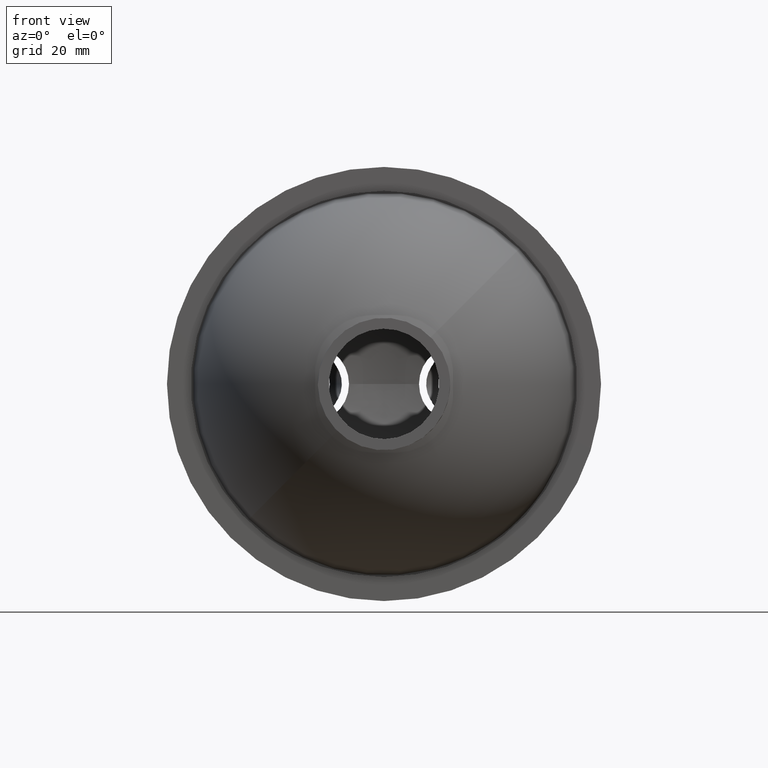
[diagram: clean part render]
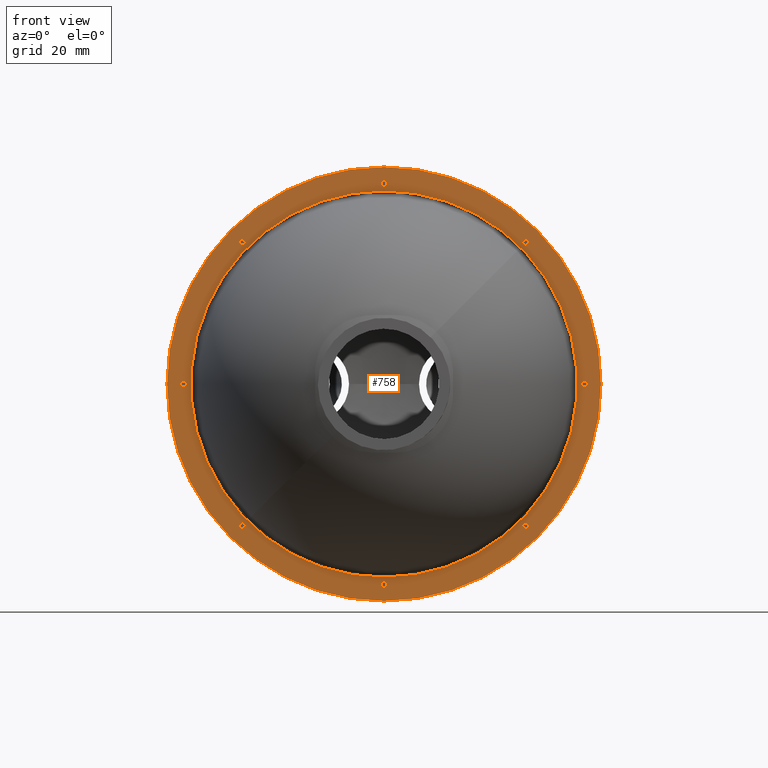
[diagram: same view with one face highlighted and labeled with its STEP entity id]
A machine part, front view. The second image highlights one B-rep face of the part: STEP entity #758.
In plain terms, the highlighted planar face has unit normal (0, 1, 0).
Its self-contained STEP definition (entity closure, byte-faithful):
#7 = EDGE_LOOP ( 'NONE', ( #652, #5634 ) ) ;
#16 = DIRECTION ( 'NONE',  ( 0.000000000000000000, 1.000000000000000000, 0.000000000000000000 ) ) ;
#18 = AXIS2_PLACEMENT_3D ( 'NONE', #3083, #4628, #874 ) ;
#21 = VERTEX_POINT ( 'NONE', #841 ) ;
#47 = AXIS2_PLACEMENT_3D ( 'NONE', #4084, #4049, #6102 ) ;
#70 = CIRCLE ( 'NONE', #726, 0.7999999999999951594 ) ;
#81 = DIRECTION ( 'NONE',  ( 0.000000000000000000, 0.000000000000000000, 1.000000000000000000 ) ) ;
#85 = DIRECTION ( 'NONE',  ( 0.000000000000000000, 1.000000000000000000, 0.000000000000000000 ) ) ;
#154 = CIRCLE ( 'NONE', #2987, 59.00000000000000711 ) ;
#161 = DIRECTION ( 'NONE',  ( 0.000000000000000000, 0.000000000000000000, 1.000000000000000000 ) ) ;
#196 = DIRECTION ( 'NONE',  ( 0.000000000000000000, 1.000000000000000000, 0.000000000000000000 ) ) ;
#213 = CARTESIAN_POINT ( 'NONE',  ( -46.01598105039164466, -23.91086588718419748, -8.212931467189969134E-13 ) ) ;
#315 = EDGE_CURVE ( 'NONE', #4604, #4274, #4470, .T. ) ;
#316 = FACE_BOUND ( 'NONE', #4859, .T. ) ;
#319 = DIRECTION ( 'NONE',  ( 0.000000000000000000, 0.000000000000000000, 1.000000000000000000 ) ) ;
#386 = FACE_BOUND ( 'NONE', #5607, .T. ) ;
#405 = CARTESIAN_POINT ( 'NONE',  ( -30.05330062505867872, -23.91086588718419748, 39.33731957466618212 ) ) ;
#415 = ORIENTED_EDGE ( 'NONE', *, *, #803, .F. ) ;
#425 = CARTESIAN_POINT ( 'NONE',  ( 47.02133852427566296, -23.91086588718419748, -38.53731957466681735 ) ) ;
#511 = CARTESIAN_POINT ( 'NONE',  ( -30.05330062505867872, -23.91086588718419748, 37.73731957466619491 ) ) ;
#560 = EDGE_CURVE ( 'NONE', #6215, #4766, #4585, .T. ) ;
#566 = DIRECTION ( 'NONE',  ( 0.000000000000000000, 0.000000000000000000, 1.000000000000000000 ) ) ;
#633 = DIRECTION ( 'NONE',  ( 0.000000000000000000, 0.000000000000000000, 1.000000000000000000 ) ) ;
#652 = ORIENTED_EDGE ( 'NONE', *, *, #2707, .T. ) ;
#726 = AXIS2_PLACEMENT_3D ( 'NONE', #3426, #4018, #4452 ) ;
#758 = ADVANCED_FACE ( 'NONE', ( #2903, #2933, #1944, #6425, #3001, #4952, #386, #316, #2384, #4518 ), #3474, .F. ) ;
#803 = EDGE_CURVE ( 'NONE', #2705, #4021, #154, .T. ) ;
#841 = CARTESIAN_POINT ( 'NONE',  ( 8.484018949608934435, -23.91086588718419748, -53.70000000000044338 ) ) ;
#874 = DIRECTION ( 'NONE',  ( 0.000000000000000000, 0.000000000000000000, 1.000000000000000000 ) ) ;
#901 = CIRCLE ( 'NONE', #3503, 0.8000000000000020428 ) ;
#957 = VERTEX_POINT ( 'NONE', #6470 ) ;
#1045 = EDGE_CURVE ( 'NONE', #6613, #2304, #2115, .T. ) ;
#1054 = ORIENTED_EDGE ( 'NONE', *, *, #3998, .T. ) ;
#1173 = CARTESIAN_POINT ( 'NONE',  ( -30.05330062505813871, -23.91086588718419748, -38.53731957466762026 ) ) ;
#1199 = ORIENTED_EDGE ( 'NONE', *, *, #6497, .T. ) ;
#1202 = EDGE_CURVE ( 'NONE', #957, #1292, #1472, .T. ) ;
#1209 = CIRCLE ( 'NONE', #2079, 0.8000000000000020428 ) ;
#1224 = ORIENTED_EDGE ( 'NONE', *, *, #560, .T. ) ;
#1291 = CARTESIAN_POINT ( 'NONE',  ( 8.484018949608364224, -23.91086588718419748, -4.407216807850953903E-13 ) ) ;
#1292 = VERTEX_POINT ( 'NONE', #5717 ) ;
#1317 = AXIS2_PLACEMENT_3D ( 'NONE', #1173, #85, #2629 ) ;
#1404 = DIRECTION ( 'NONE',  ( 0.000000000000000000, 1.000000000000000000, 0.000000000000000000 ) ) ;
#1425 = ORIENTED_EDGE ( 'NONE', *, *, #2752, .T. ) ;
#1472 = CIRCLE ( 'NONE', #4595, 0.7999999999999986011 ) ;
#1533 = EDGE_LOOP ( 'NONE', ( #1199, #4704 ) ) ;
#1584 = CIRCLE ( 'NONE', #3322, 0.7999999999999951594 ) ;
#1674 = DIRECTION ( 'NONE',  ( 0.000000000000000000, 0.000000000000000000, 1.000000000000000000 ) ) ;
#1705 = ORIENTED_EDGE ( 'NONE', *, *, #6542, .F. ) ;
#1824 = CARTESIAN_POINT ( 'NONE',  ( -30.05330062505867872, -23.91086588718419748, 38.53731957466619207 ) ) ;
#1831 = VERTEX_POINT ( 'NONE', #3446 ) ;
#1844 = EDGE_CURVE ( 'NONE', #5735, #21, #901, .T. ) ;
#1871 = DIRECTION ( 'NONE',  ( 0.000000000000000000, -0.000000000000000000, 1.000000000000000000 ) ) ;
#1892 = CARTESIAN_POINT ( 'NONE',  ( 8.484018949608364224, -23.91086588718419748, -4.407216807850953903E-13 ) ) ;
#1902 = CIRCLE ( 'NONE', #47, 0.7999999999999951594 ) ;
#1906 = EDGE_LOOP ( 'NONE', ( #1915, #5937 ) ) ;
#1915 = ORIENTED_EDGE ( 'NONE', *, *, #5738, .T. ) ;
#1944 = FACE_BOUND ( 'NONE', #3809, .T. ) ;
#1948 = CARTESIAN_POINT ( 'NONE',  ( 47.02133852427513006, -23.91086588718419748, 39.33731957466646634 ) ) ;
#1951 = CARTESIAN_POINT ( 'NONE',  ( 8.484018949608364224, -23.91086588718419748, -4.407216807850953903E-13 ) ) ;
#2079 = AXIS2_PLACEMENT_3D ( 'NONE', #4656, #16, #633 ) ;
#2103 = AXIS2_PLACEMENT_3D ( 'NONE', #5258, #2669, #4724 ) ;
#2115 = CIRCLE ( 'NONE', #6631, 0.7999999999999986011 ) ;
#2181 = DIRECTION ( 'NONE',  ( 0.000000000000000000, 1.000000000000000000, 0.000000000000000000 ) ) ;
#2214 = ORIENTED_EDGE ( 'NONE', *, *, #1045, .T. ) ;
#2239 = CARTESIAN_POINT ( 'NONE',  ( 47.02133852427566296, -23.91086588718419748, -39.33731957466680740 ) ) ;
#2304 = VERTEX_POINT ( 'NONE', #4069 ) ;
#2305 = CIRCLE ( 'NONE', #4884, 52.50000000000000000 ) ;
#2310 = CARTESIAN_POINT ( 'NONE',  ( 8.484018949608364224, -23.91086588718419748, -52.50000000000044054 ) ) ;
#2338 = AXIS2_PLACEMENT_3D ( 'NONE', #3267, #3239, #1674 ) ;
#2358 = DIRECTION ( 'NONE',  ( 0.000000000000000000, 1.000000000000000000, 0.000000000000000000 ) ) ;
#2374 = CARTESIAN_POINT ( 'NONE',  ( -30.05330062505813871, -23.91086588718419748, -39.33731957466761742 ) ) ;
#2384 = FACE_OUTER_BOUND ( 'NONE', #3571, .T. ) ;
#2467 = VERTEX_POINT ( 'NONE', #405 ) ;
#2480 = VERTEX_POINT ( 'NONE', #5572 ) ;
#2518 = CARTESIAN_POINT ( 'NONE',  ( 8.484018949608172377, -23.91086588718419748, 54.49999999999955236 ) ) ;
#2569 = CARTESIAN_POINT ( 'NONE',  ( -46.01598105039164466, -23.91086588718419748, -8.212931467189969134E-13 ) ) ;
#2596 = DIRECTION ( 'NONE',  ( 0.000000000000000000, 0.000000000000000000, 1.000000000000000000 ) ) ;
#2602 = ORIENTED_EDGE ( 'NONE', *, *, #3010, .T. ) ;
#2629 = DIRECTION ( 'NONE',  ( 0.000000000000000000, 0.000000000000000000, 1.000000000000000000 ) ) ;
#2633 = CARTESIAN_POINT ( 'NONE',  ( 8.484018949608364224, -23.91086588718419748, -4.407216807850953903E-13 ) ) ;
#2658 = CIRCLE ( 'NONE', #6420, 0.8000000000000020428 ) ;
#2669 = DIRECTION ( 'NONE',  ( 0.000000000000000000, 1.000000000000000000, 0.000000000000000000 ) ) ;
#2693 = CARTESIAN_POINT ( 'NONE',  ( 8.484018949608364224, -23.91086588718419748, -59.00000000000044764 ) ) ;
#2705 = VERTEX_POINT ( 'NONE', #2693 ) ;
#2707 = EDGE_CURVE ( 'NONE', #1292, #957, #4058, .T. ) ;
#2734 = DIRECTION ( 'NONE',  ( 0.000000000000000000, 1.000000000000000000, 0.000000000000000000 ) ) ;
#2752 = EDGE_CURVE ( 'NONE', #2480, #4924, #6642, .T. ) ;
#2903 = FACE_BOUND ( 'NONE', #6482, .T. ) ;
#2905 = VERTEX_POINT ( 'NONE', #1948 ) ;
#2933 = FACE_BOUND ( 'NONE', #1533, .T. ) ;
#2987 = AXIS2_PLACEMENT_3D ( 'NONE', #2633, #4756, #566 ) ;
#3001 = FACE_BOUND ( 'NONE', #1906, .T. ) ;
#3010 = EDGE_CURVE ( 'NONE', #4766, #6215, #3204, .T. ) ;
#3020 = EDGE_CURVE ( 'NONE', #5653, #4102, #2658, .T. ) ;
#3036 = DIRECTION ( 'NONE',  ( 0.000000000000000000, 1.000000000000000000, 0.000000000000000000 ) ) ;
#3064 = DIRECTION ( 'NONE',  ( 0.000000000000000000, 0.000000000000000000, 1.000000000000000000 ) ) ;
#3083 = CARTESIAN_POINT ( 'NONE',  ( 62.98401894960835534, -23.91086588718419748, -4.407216807850953903E-13 ) ) ;
#3110 = ORIENTED_EDGE ( 'NONE', *, *, #4043, .T. ) ;
#3204 = CIRCLE ( 'NONE', #4703, 0.7999999999999951594 ) ;
#3239 = DIRECTION ( 'NONE',  ( 0.000000000000000000, 1.000000000000000000, 0.000000000000000000 ) ) ;
#3267 = CARTESIAN_POINT ( 'NONE',  ( -30.05330062505813871, -23.91086588718419748, -38.53731957466762026 ) ) ;
#3274 = CARTESIAN_POINT ( 'NONE',  ( 8.484018949608172377, -23.91086588718419748, 55.29999999999955662 ) ) ;
#3285 = ORIENTED_EDGE ( 'NONE', *, *, #5627, .T. ) ;
#3322 = AXIS2_PLACEMENT_3D ( 'NONE', #1824, #3879, #4827 ) ;
#3336 = CARTESIAN_POINT ( 'NONE',  ( 47.02133852427566296, -23.91086588718419748, -38.53731957466681735 ) ) ;
#3384 = CIRCLE ( 'NONE', #1317, 0.7999999999999951594 ) ;
#3426 = CARTESIAN_POINT ( 'NONE',  ( -30.05330062505867872, -23.91086588718419748, 38.53731957466619207 ) ) ;
#3446 = CARTESIAN_POINT ( 'NONE',  ( 47.02133852427513006, -23.91086588718419748, 37.73731957466647202 ) ) ;
#3474 = PLANE ( 'NONE',  #6191 ) ;
#3483 = EDGE_LOOP ( 'NONE', ( #4331, #3697 ) ) ;
#3503 = AXIS2_PLACEMENT_3D ( 'NONE', #4873, #2358, #319 ) ;
#3567 = DIRECTION ( 'NONE',  ( 0.000000000000000000, 1.000000000000000000, 0.000000000000000000 ) ) ;
#3571 = EDGE_LOOP ( 'NONE', ( #415, #1705 ) ) ;
#3612 = CARTESIAN_POINT ( 'NONE',  ( 8.484018949608371329, -23.91086588718419748, 58.99999999999955946 ) ) ;
#3615 = CIRCLE ( 'NONE', #5865, 59.00000000000000711 ) ;
#3697 = ORIENTED_EDGE ( 'NONE', *, *, #4262, .T. ) ;
#3702 = CARTESIAN_POINT ( 'NONE',  ( 8.484018949608364224, -23.91086588718419748, -4.407216807850953903E-13 ) ) ;
#3809 = EDGE_LOOP ( 'NONE', ( #1425, #1054 ) ) ;
#3879 = DIRECTION ( 'NONE',  ( 0.000000000000000000, 1.000000000000000000, 0.000000000000000000 ) ) ;
#3912 = CIRCLE ( 'NONE', #18, 0.7999999999999986011 ) ;
#3953 = DIRECTION ( 'NONE',  ( 0.000000000000000000, 0.000000000000000000, 1.000000000000000000 ) ) ;
#3982 = EDGE_CURVE ( 'NONE', #2304, #6613, #3912, .T. ) ;
#3998 = EDGE_CURVE ( 'NONE', #4924, #2480, #3384, .T. ) ;
#4018 = DIRECTION ( 'NONE',  ( 0.000000000000000000, 1.000000000000000000, 0.000000000000000000 ) ) ;
#4021 = VERTEX_POINT ( 'NONE', #3612 ) ;
#4042 = DIRECTION ( 'NONE',  ( 0.000000000000000000, 0.000000000000000000, 1.000000000000000000 ) ) ;
#4043 = EDGE_CURVE ( 'NONE', #4102, #5653, #1209, .T. ) ;
#4049 = DIRECTION ( 'NONE',  ( 0.000000000000000000, 1.000000000000000000, 0.000000000000000000 ) ) ;
#4058 = CIRCLE ( 'NONE', #4917, 0.7999999999999986011 ) ;
#4069 = CARTESIAN_POINT ( 'NONE',  ( 62.98401894960835534, -23.91086588718419748, 0.7999999999995579536 ) ) ;
#4084 = CARTESIAN_POINT ( 'NONE',  ( 47.02133852427513006, -23.91086588718419748, 38.53731957466646918 ) ) ;
#4102 = VERTEX_POINT ( 'NONE', #3274 ) ;
#4130 = DIRECTION ( 'NONE',  ( 0.000000000000000000, 1.000000000000000000, 0.000000000000000000 ) ) ;
#4262 = EDGE_CURVE ( 'NONE', #4274, #4604, #2305, .T. ) ;
#4274 = VERTEX_POINT ( 'NONE', #6004 ) ;
#4287 = DIRECTION ( 'NONE',  ( 0.000000000000000000, 1.000000000000000000, 0.000000000000000000 ) ) ;
#4318 = DIRECTION ( 'NONE',  ( 0.000000000000000000, 0.000000000000000000, 1.000000000000000000 ) ) ;
#4331 = ORIENTED_EDGE ( 'NONE', *, *, #315, .T. ) ;
#4443 = DIRECTION ( 'NONE',  ( 0.000000000000000000, 1.000000000000000000, 0.000000000000000000 ) ) ;
#4452 = DIRECTION ( 'NONE',  ( 0.000000000000000000, 0.000000000000000000, 1.000000000000000000 ) ) ;
#4470 = CIRCLE ( 'NONE', #5313, 52.50000000000000000 ) ;
#4518 = FACE_BOUND ( 'NONE', #3483, .T. ) ;
#4585 = CIRCLE ( 'NONE', #5864, 0.7999999999999951594 ) ;
#4595 = AXIS2_PLACEMENT_3D ( 'NONE', #2569, #2181, #2596 ) ;
#4604 = VERTEX_POINT ( 'NONE', #2310 ) ;
#4628 = DIRECTION ( 'NONE',  ( 0.000000000000000000, 1.000000000000000000, 0.000000000000000000 ) ) ;
#4656 = CARTESIAN_POINT ( 'NONE',  ( 8.484018949608172377, -23.91086588718419748, 54.49999999999955236 ) ) ;
#4703 = AXIS2_PLACEMENT_3D ( 'NONE', #425, #3567, #4042 ) ;
#4704 = ORIENTED_EDGE ( 'NONE', *, *, #1844, .T. ) ;
#4724 = DIRECTION ( 'NONE',  ( 0.000000000000000000, 0.000000000000000000, 1.000000000000000000 ) ) ;
#4756 = DIRECTION ( 'NONE',  ( 0.000000000000000000, 1.000000000000000000, 0.000000000000000000 ) ) ;
#4766 = VERTEX_POINT ( 'NONE', #2239 ) ;
#4827 = DIRECTION ( 'NONE',  ( 0.000000000000000000, 0.000000000000000000, 1.000000000000000000 ) ) ;
#4858 = CARTESIAN_POINT ( 'NONE',  ( 62.98401894960835534, -23.91086588718419748, -4.407216807850953903E-13 ) ) ;
#4859 = EDGE_LOOP ( 'NONE', ( #5059, #2214 ) ) ;
#4873 = CARTESIAN_POINT ( 'NONE',  ( 8.484018949608934435, -23.91086588718419748, -54.50000000000044054 ) ) ;
#4884 = AXIS2_PLACEMENT_3D ( 'NONE', #1892, #4130, #3953 ) ;
#4917 = AXIS2_PLACEMENT_3D ( 'NONE', #213, #6354, #81 ) ;
#4924 = VERTEX_POINT ( 'NONE', #2374 ) ;
#4952 = FACE_BOUND ( 'NONE', #6282, .T. ) ;
#5059 = ORIENTED_EDGE ( 'NONE', *, *, #3982, .T. ) ;
#5250 = CIRCLE ( 'NONE', #6433, 0.7999999999999951594 ) ;
#5258 = CARTESIAN_POINT ( 'NONE',  ( 8.484018949608934435, -23.91086588718419748, -54.50000000000044054 ) ) ;
#5313 = AXIS2_PLACEMENT_3D ( 'NONE', #1951, #4443, #6495 ) ;
#5323 = ORIENTED_EDGE ( 'NONE', *, *, #5412, .T. ) ;
#5328 = CIRCLE ( 'NONE', #2103, 0.8000000000000020428 ) ;
#5340 = CARTESIAN_POINT ( 'NONE',  ( 47.02133852427566296, -23.91086588718419748, -37.73731957466682019 ) ) ;
#5360 = CARTESIAN_POINT ( 'NONE',  ( 47.02133852427513006, -23.91086588718419748, 38.53731957466646918 ) ) ;
#5412 = EDGE_CURVE ( 'NONE', #1831, #2905, #1902, .T. ) ;
#5439 = VERTEX_POINT ( 'NONE', #511 ) ;
#5500 = CARTESIAN_POINT ( 'NONE',  ( 8.484018949608934435, -23.91086588718419748, -55.30000000000044480 ) ) ;
#5572 = CARTESIAN_POINT ( 'NONE',  ( -30.05330062505813871, -23.91086588718419748, -37.73731957466762310 ) ) ;
#5607 = EDGE_LOOP ( 'NONE', ( #3285, #5323 ) ) ;
#5615 = EDGE_CURVE ( 'NONE', #5439, #2467, #1584, .T. ) ;
#5627 = EDGE_CURVE ( 'NONE', #2905, #1831, #5250, .T. ) ;
#5634 = ORIENTED_EDGE ( 'NONE', *, *, #1202, .T. ) ;
#5653 = VERTEX_POINT ( 'NONE', #6440 ) ;
#5717 = CARTESIAN_POINT ( 'NONE',  ( -46.01598105039164466, -23.91086588718419748, 0.7999999999991773691 ) ) ;
#5735 = VERTEX_POINT ( 'NONE', #5500 ) ;
#5738 = EDGE_CURVE ( 'NONE', #2467, #5439, #70, .T. ) ;
#5744 = DIRECTION ( 'NONE',  ( 0.000000000000000000, 1.000000000000000000, 0.000000000000000000 ) ) ;
#5760 = DIRECTION ( 'NONE',  ( 0.000000000000000000, 0.000000000000000000, 1.000000000000000000 ) ) ;
#5844 = DIRECTION ( 'NONE',  ( 0.000000000000000000, 0.000000000000000000, 1.000000000000000000 ) ) ;
#5864 = AXIS2_PLACEMENT_3D ( 'NONE', #3336, #5744, #5844 ) ;
#5865 = AXIS2_PLACEMENT_3D ( 'NONE', #3702, #4287, #5760 ) ;
#5937 = ORIENTED_EDGE ( 'NONE', *, *, #5615, .T. ) ;
#6004 = CARTESIAN_POINT ( 'NONE',  ( 8.484018949608371329, -23.91086588718419748, 52.49999999999955236 ) ) ;
#6102 = DIRECTION ( 'NONE',  ( 0.000000000000000000, 0.000000000000000000, 1.000000000000000000 ) ) ;
#6164 = ORIENTED_EDGE ( 'NONE', *, *, #3020, .T. ) ;
#6191 = AXIS2_PLACEMENT_3D ( 'NONE', #1291, #1404, #1871 ) ;
#6215 = VERTEX_POINT ( 'NONE', #5340 ) ;
#6282 = EDGE_LOOP ( 'NONE', ( #3110, #6164 ) ) ;
#6354 = DIRECTION ( 'NONE',  ( 0.000000000000000000, 1.000000000000000000, 0.000000000000000000 ) ) ;
#6420 = AXIS2_PLACEMENT_3D ( 'NONE', #2518, #3036, #3064 ) ;
#6425 = FACE_BOUND ( 'NONE', #7, .T. ) ;
#6433 = AXIS2_PLACEMENT_3D ( 'NONE', #5360, #2734, #161 ) ;
#6437 = CARTESIAN_POINT ( 'NONE',  ( 62.98401894960835534, -23.91086588718419748, -0.8000000000004393597 ) ) ;
#6440 = CARTESIAN_POINT ( 'NONE',  ( 8.484018949608172377, -23.91086588718419748, 53.69999999999955520 ) ) ;
#6470 = CARTESIAN_POINT ( 'NONE',  ( -46.01598105039164466, -23.91086588718419748, -0.8000000000008199441 ) ) ;
#6482 = EDGE_LOOP ( 'NONE', ( #1224, #2602 ) ) ;
#6495 = DIRECTION ( 'NONE',  ( 0.000000000000000000, 0.000000000000000000, 1.000000000000000000 ) ) ;
#6497 = EDGE_CURVE ( 'NONE', #21, #5735, #5328, .T. ) ;
#6542 = EDGE_CURVE ( 'NONE', #4021, #2705, #3615, .T. ) ;
#6613 = VERTEX_POINT ( 'NONE', #6437 ) ;
#6631 = AXIS2_PLACEMENT_3D ( 'NONE', #4858, #196, #4318 ) ;
#6642 = CIRCLE ( 'NONE', #2338, 0.7999999999999951594 ) ;